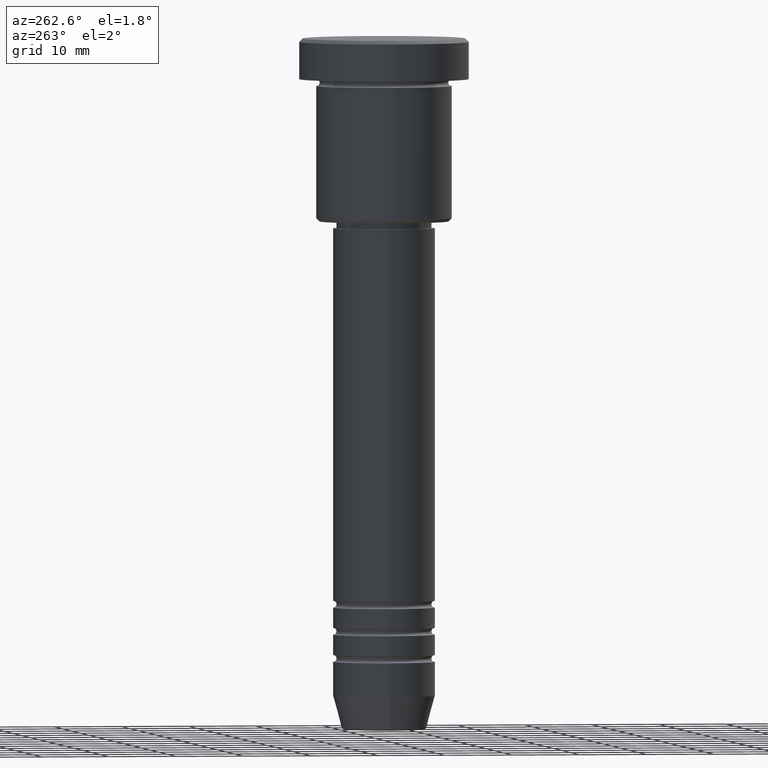
[diagram: clean part render]
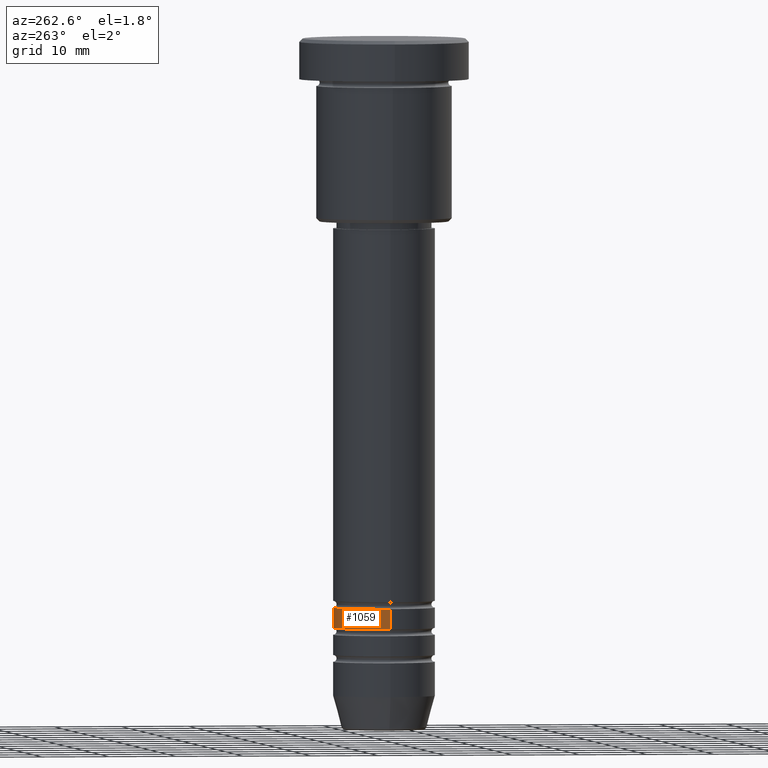
[diagram: same view with one face highlighted and labeled with its STEP entity id]
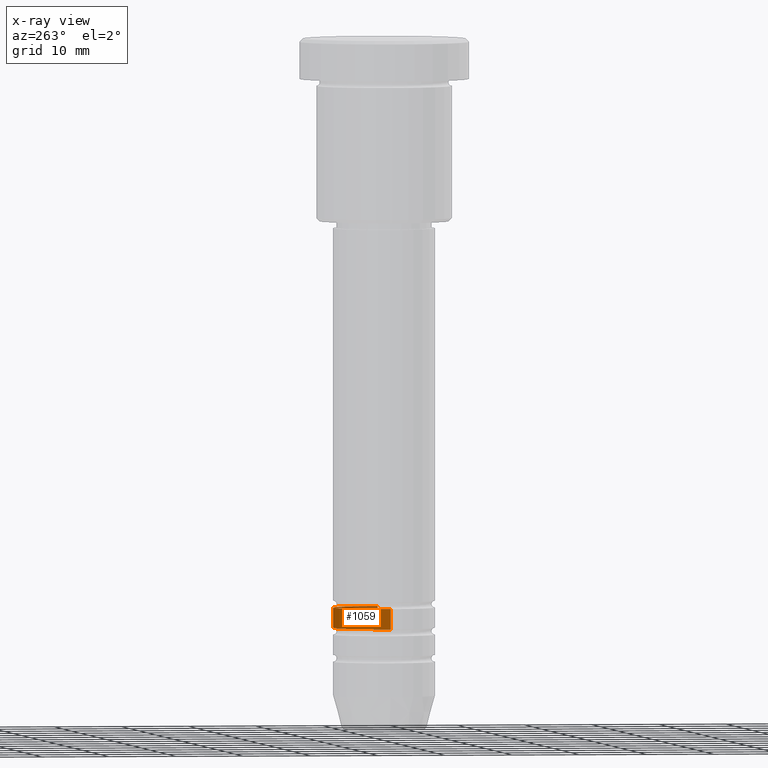
[diagram: x-ray of the same camera — body ghosted, the highlighted face saturated]
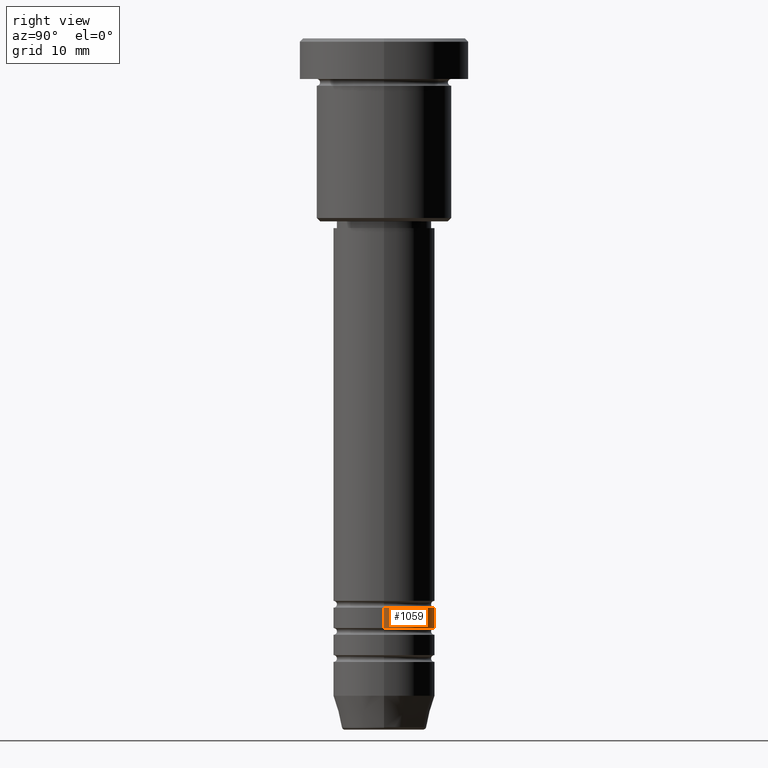
[diagram: same view with one face highlighted and labeled with its STEP entity id]
A machine part, auxiliary view. The second image highlights one B-rep face of the part: STEP entity #1059.
The next image is the same camera in x-ray: the body ghosted, the highlighted face saturated — about 6% of this face is hidden behind the body in this view.
A second angle (right view) of the same face is appended — the face is thin or edge-on in the first view.
In plain terms, the highlighted cylindrical surface (partial cylindrical patch) has radius 7.5 mm, axis along (-0, -0, 1).
Its self-contained STEP definition (entity closure, byte-faithful):
#59 = EDGE_CURVE ( 'NONE', #362, #808, #170, .T. ) ;
#95 = CARTESIAN_POINT ( 'NONE',  ( 0.000000000000000000, 0.000000000000000000, 0.000000000000000000 ) ) ;
#113 = DIRECTION ( 'NONE',  ( -0.000000000000000000, -0.000000000000000000, 1.000000000000000000 ) ) ;
#129 = CARTESIAN_POINT ( 'NONE',  ( 0.000000000000000000, 0.000000000000000000, -86.99999999999991473 ) ) ;
#170 = LINE ( 'NONE', #791, #373 ) ;
#202 = EDGE_LOOP ( 'NONE', ( #1181, #638, #294, #1058 ) ) ;
#205 = EDGE_CURVE ( 'NONE', #362, #1080, #498, .T. ) ;
#260 = CYLINDRICAL_SURFACE ( 'NONE', #822, 7.500000000000001776 ) ;
#294 = ORIENTED_EDGE ( 'NONE', *, *, #1145, .F. ) ;
#295 = CARTESIAN_POINT ( 'NONE',  ( 0.000000000000000000, 0.000000000000000000, -83.99999999999990052 ) ) ;
#323 = CIRCLE ( 'NONE', #1076, 7.500000000000000000 ) ;
#362 = VERTEX_POINT ( 'NONE', #557 ) ;
#373 = VECTOR ( 'NONE', #433, 1000.000000000000000 ) ;
#377 = CARTESIAN_POINT ( 'NONE',  ( -7.500000000000003553, 9.184850993605151889E-16, -86.99999999999991473 ) ) ;
#384 = DIRECTION ( 'NONE',  ( 1.000000000000000000, 0.000000000000000000, 0.000000000000000000 ) ) ;
#424 = VECTOR ( 'NONE', #113, 1000.000000000000000 ) ;
#433 = DIRECTION ( 'NONE',  ( -0.000000000000000000, -0.000000000000000000, 1.000000000000000000 ) ) ;
#458 = DIRECTION ( 'NONE',  ( 1.000000000000000000, 0.000000000000000000, 0.000000000000000000 ) ) ;
#498 = CIRCLE ( 'NONE', #610, 7.500000000000002665 ) ;
#516 = DIRECTION ( 'NONE',  ( -0.000000000000000000, -0.000000000000000000, 1.000000000000000000 ) ) ;
#557 = CARTESIAN_POINT ( 'NONE',  ( 7.500000000000002665, 0.000000000000000000, -86.99999999999991473 ) ) ;
#610 = AXIS2_PLACEMENT_3D ( 'NONE', #129, #516, #789 ) ;
#616 = CARTESIAN_POINT ( 'NONE',  ( 7.500000000000000000, 0.000000000000000000, -83.99999999999990052 ) ) ;
#638 = ORIENTED_EDGE ( 'NONE', *, *, #936, .T. ) ;
#652 = VERTEX_POINT ( 'NONE', #1162 ) ;
#719 = FACE_OUTER_BOUND ( 'NONE', #202, .T. ) ;
#789 = DIRECTION ( 'NONE',  ( 1.000000000000000000, 0.000000000000000000, 0.000000000000000000 ) ) ;
#791 = CARTESIAN_POINT ( 'NONE',  ( 7.500000000000001776, 0.000000000000000000, 0.000000000000000000 ) ) ;
#808 = VERTEX_POINT ( 'NONE', #616 ) ;
#822 = AXIS2_PLACEMENT_3D ( 'NONE', #95, #898, #458 ) ;
#898 = DIRECTION ( 'NONE',  ( -0.000000000000000000, -0.000000000000000000, 1.000000000000000000 ) ) ;
#921 = LINE ( 'NONE', #945, #424 ) ;
#936 = EDGE_CURVE ( 'NONE', #1080, #652, #921, .T. ) ;
#945 = CARTESIAN_POINT ( 'NONE',  ( -7.500000000000001776, 9.184850993605149917E-16, 0.000000000000000000 ) ) ;
#1058 = ORIENTED_EDGE ( 'NONE', *, *, #59, .F. ) ;
#1059 = ADVANCED_FACE ( 'NONE', ( #719 ), #260, .T. ) ;
#1076 = AXIS2_PLACEMENT_3D ( 'NONE', #295, #1131, #384 ) ;
#1080 = VERTEX_POINT ( 'NONE', #377 ) ;
#1131 = DIRECTION ( 'NONE',  ( -0.000000000000000000, -0.000000000000000000, 1.000000000000000000 ) ) ;
#1145 = EDGE_CURVE ( 'NONE', #808, #652, #323, .T. ) ;
#1162 = CARTESIAN_POINT ( 'NONE',  ( -7.500000000000000000, 9.184850993605147944E-16, -83.99999999999990052 ) ) ;
#1181 = ORIENTED_EDGE ( 'NONE', *, *, #205, .T. ) ;